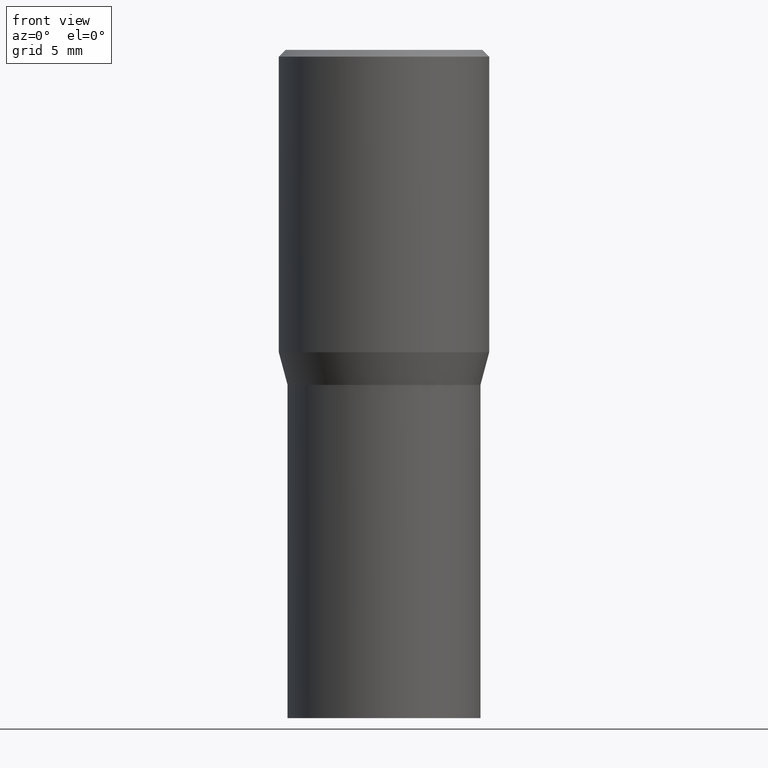
[diagram: clean part render]
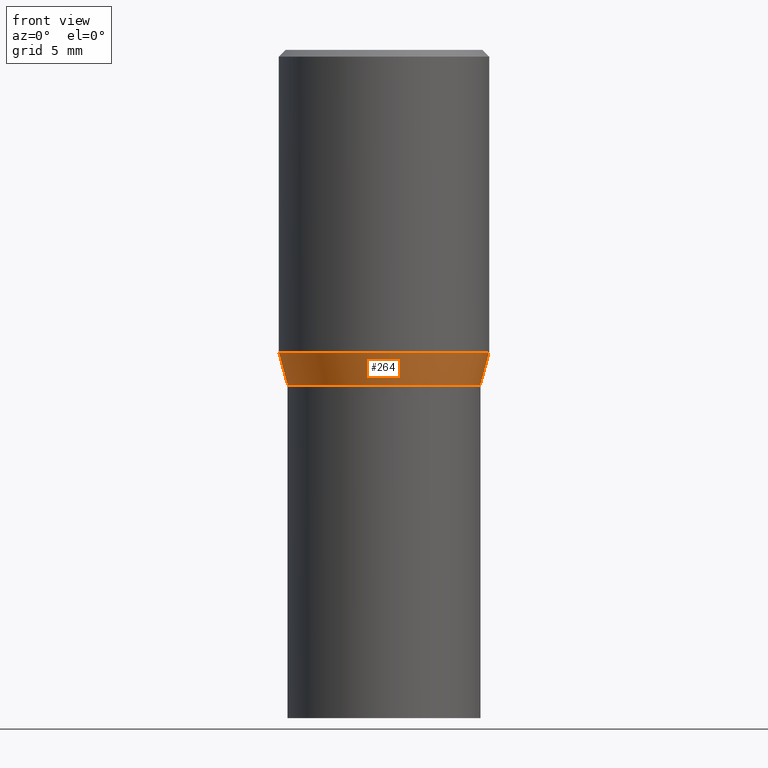
[diagram: same view with one face highlighted and labeled with its STEP entity id]
A machine part, front view. The second image highlights one B-rep face of the part: STEP entity #264.
In plain terms, the highlighted conical surface has half-angle 15 deg.
Its self-contained STEP definition (entity closure, byte-faithful):
#10 = CARTESIAN_POINT ( 'NONE',  ( -0.2361999999999999933, -6.912449449524502887E-16, -0.6786652016312719748 ) ) ;
#16 = CONICAL_SURFACE ( 'NONE', #372, 0.2165500000000000203, 0.2617993877991505736 ) ;
#24 = EDGE_CURVE ( 'NONE', #27, #309, #285, .T. ) ;
#25 = CIRCLE ( 'NONE', #200, 0.2361999999999999933 ) ;
#27 = VERTEX_POINT ( 'NONE', #150 ) ;
#48 = DIRECTION ( 'NONE',  ( 1.000000000000000000, -6.982962677686266711E-15, 0.000000000000000000 ) ) ;
#58 = EDGE_CURVE ( 'NONE', #255, #27, #270, .T. ) ;
#81 = DIRECTION ( 'NONE',  ( -2.445468806185136597E-29, 3.491481338843145583E-15, 1.000000000000000000 ) ) ;
#86 = DIRECTION ( 'NONE',  ( -2.445468806185136597E-29, 3.491481338843145583E-15, 1.000000000000000000 ) ) ;
#123 = EDGE_CURVE ( 'NONE', #180, #309, #25, .T. ) ;
#150 = CARTESIAN_POINT ( 'NONE',  ( 0.2165500000000000203, -4.137754534663007109E-15, -0.7520000000000001128 ) ) ;
#151 = ORIENTED_EDGE ( 'NONE', *, *, #58, .T. ) ;
#158 = CARTESIAN_POINT ( 'NONE',  ( 1.659654580432621677E-29, -2.369546886817807077E-15, -0.6786652016312719748 ) ) ;
#159 = DIRECTION ( 'NONE',  ( 0.2588190451025218497, 1.565188264969618221E-15, 0.9659258262890679791 ) ) ;
#160 = CARTESIAN_POINT ( 'NONE',  ( -0.2165500000000000203, -1.086913672521548598E-15, -0.7520000000000001128 ) ) ;
#164 = DIRECTION ( 'NONE',  ( -2.445468806185136597E-29, 3.491481338843145583E-15, 1.000000000000000000 ) ) ;
#180 = VERTEX_POINT ( 'NONE', #10 ) ;
#186 = EDGE_LOOP ( 'NONE', ( #456, #151, #365, #452 ) ) ;
#191 = CARTESIAN_POINT ( 'NONE',  ( 0.2361999999999999933, -4.018922671287303208E-15, -0.6786652016312719748 ) ) ;
#193 = CARTESIAN_POINT ( 'NONE',  ( -0.2165500000000000203, -8.890793087369993447E-16, -0.7520000000000001128 ) ) ;
#195 = LINE ( 'NONE', #160, #207 ) ;
#200 = AXIS2_PLACEMENT_3D ( 'NONE', #158, #164, #48 ) ;
#201 = DIRECTION ( 'NONE',  ( 1.000000000000000000, -6.982962677686266711E-15, 0.000000000000000000 ) ) ;
#207 = VECTOR ( 'NONE', #294, 39.37007874015748143 ) ;
#210 = CARTESIAN_POINT ( 'NONE',  ( 0.2165500000000000203, -4.137754534663007109E-15, -0.7520000000000001128 ) ) ;
#234 = CARTESIAN_POINT ( 'NONE',  ( 1.838992542251222813E-29, -2.625593966810045497E-15, -0.7520000000000001128 ) ) ;
#255 = VERTEX_POINT ( 'NONE', #193 ) ;
#264 = ADVANCED_FACE ( 'NONE', ( #293 ), #16, .T. ) ;
#270 = CIRCLE ( 'NONE', #420, 0.2165500000000000203 ) ;
#285 = LINE ( 'NONE', #210, #306 ) ;
#293 = FACE_OUTER_BOUND ( 'NONE', #186, .T. ) ;
#294 = DIRECTION ( 'NONE',  ( -0.2588190451025218497, 5.211531920934553408E-15, 0.9659258262890679791 ) ) ;
#306 = VECTOR ( 'NONE', #159, 39.37007874015748143 ) ;
#309 = VERTEX_POINT ( 'NONE', #191 ) ;
#365 = ORIENTED_EDGE ( 'NONE', *, *, #24, .T. ) ;
#372 = AXIS2_PLACEMENT_3D ( 'NONE', #234, #81, #201 ) ;
#379 = EDGE_CURVE ( 'NONE', #255, #180, #195, .T. ) ;
#385 = DIRECTION ( 'NONE',  ( 1.000000000000000000, -6.982962677686266711E-15, 0.000000000000000000 ) ) ;
#414 = CARTESIAN_POINT ( 'NONE',  ( 1.838992542251222813E-29, -2.625593966810045497E-15, -0.7520000000000001128 ) ) ;
#420 = AXIS2_PLACEMENT_3D ( 'NONE', #414, #86, #385 ) ;
#452 = ORIENTED_EDGE ( 'NONE', *, *, #123, .F. ) ;
#456 = ORIENTED_EDGE ( 'NONE', *, *, #379, .F. ) ;